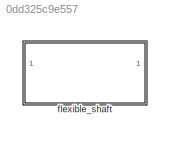
MODEL slx_0dd325c9e557
KIND library
CONFIG AbsTol = auto
CONFIG EnableMultiTasking = off
CONFIG FixedStep = auto
CONFIG MaxStep = auto
CONFIG MinStep = auto
CONFIG RelTol = 1e-3
CONFIG SampleTimeConstraint = Unconstrained
CONFIG SolverName = VariableStepAuto
CONFIG StartTime = 0.0
CONFIG StopTime = 10.0
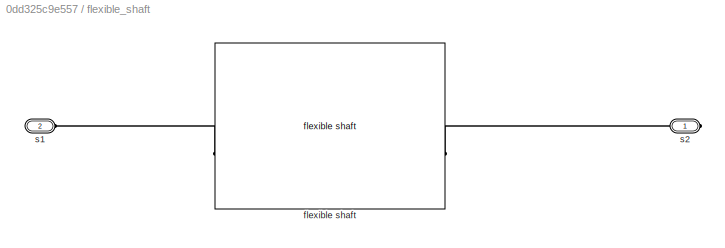
BLOCK [SubSystem] flexible_shaft
BLOCK [Reference] flexible_shaft/flexible shaft  REF=flexshaft_lib/flexible shaft
  SourceBlock = flexshaft_lib/flexible shaft
  SourceType = flexible shaft
BLOCK [PMIOPort] flexible_shaft/s1
  Port = 2
  Side = Left
BLOCK [PMIOPort] flexible_shaft/s2
  Side = Right
PLINE flexible_shaft/flexible shaft:LConn1 -- flexible_shaft/s1:RConn1
PLINE flexible_shaft/flexible shaft:RConn1 -- flexible_shaft/s2:RConn1
